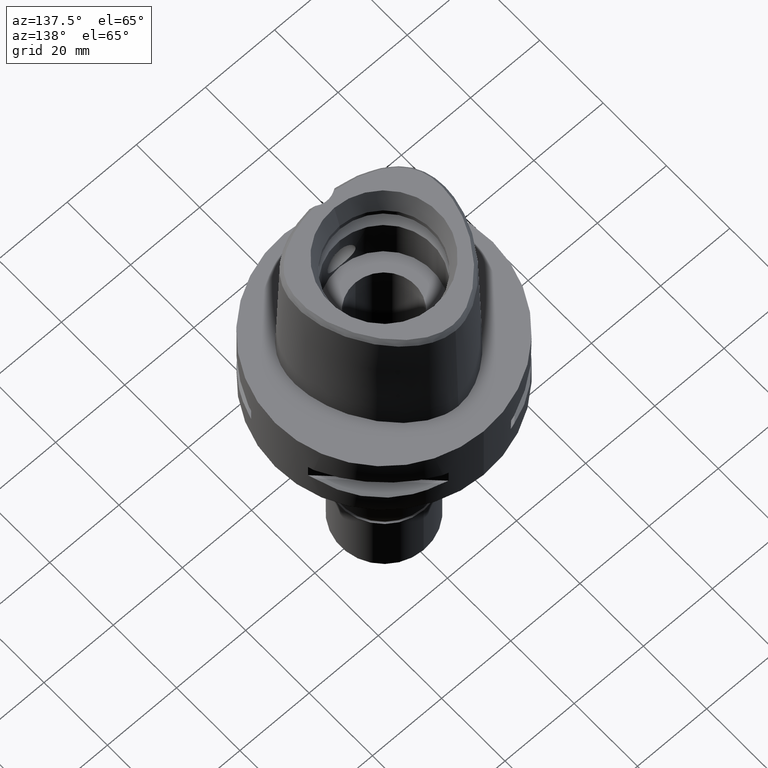
[diagram: clean part render]
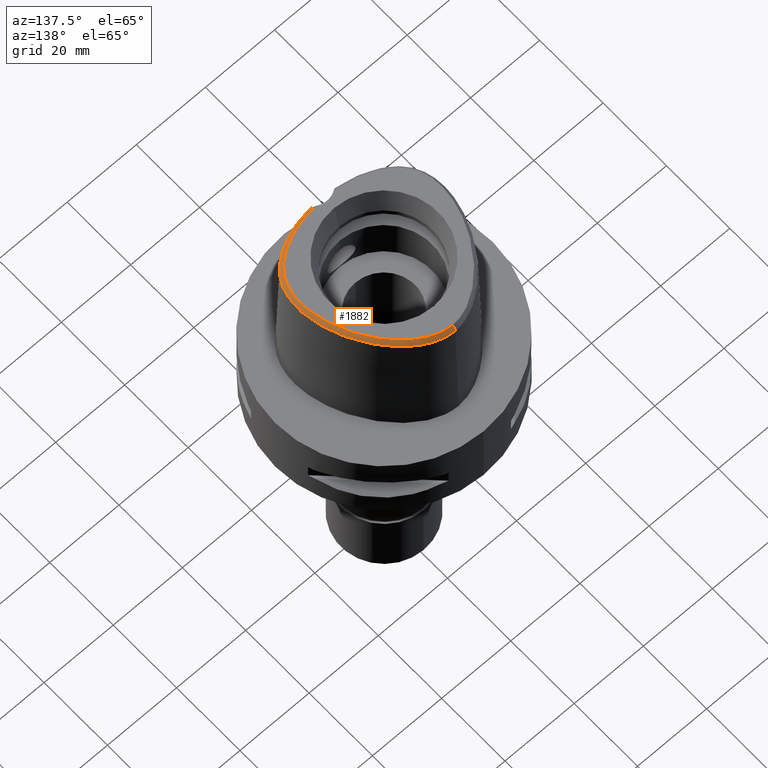
[diagram: same view with one face highlighted and labeled with its STEP entity id]
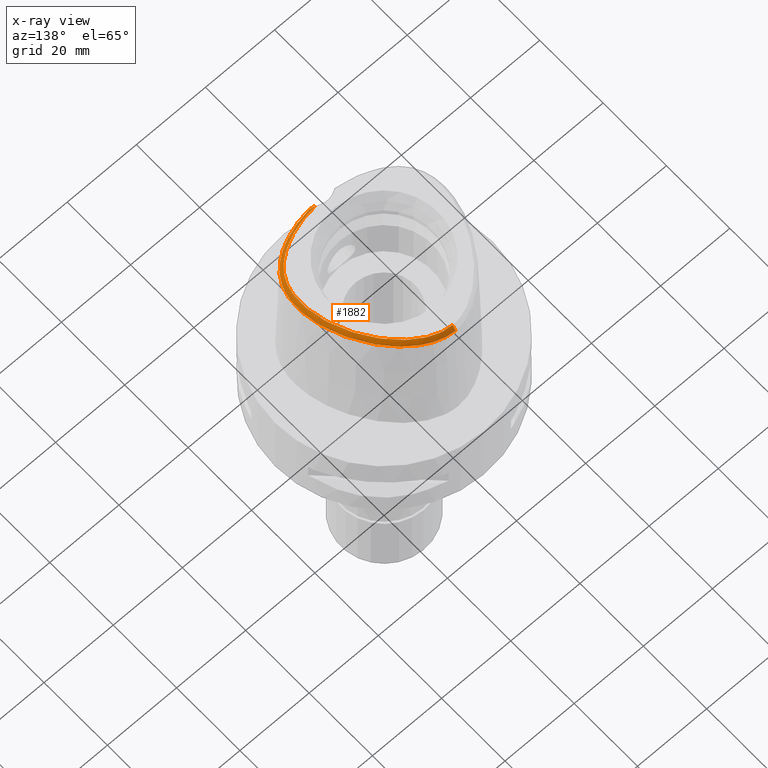
[diagram: x-ray of the same camera — body ghosted, the highlighted face saturated]
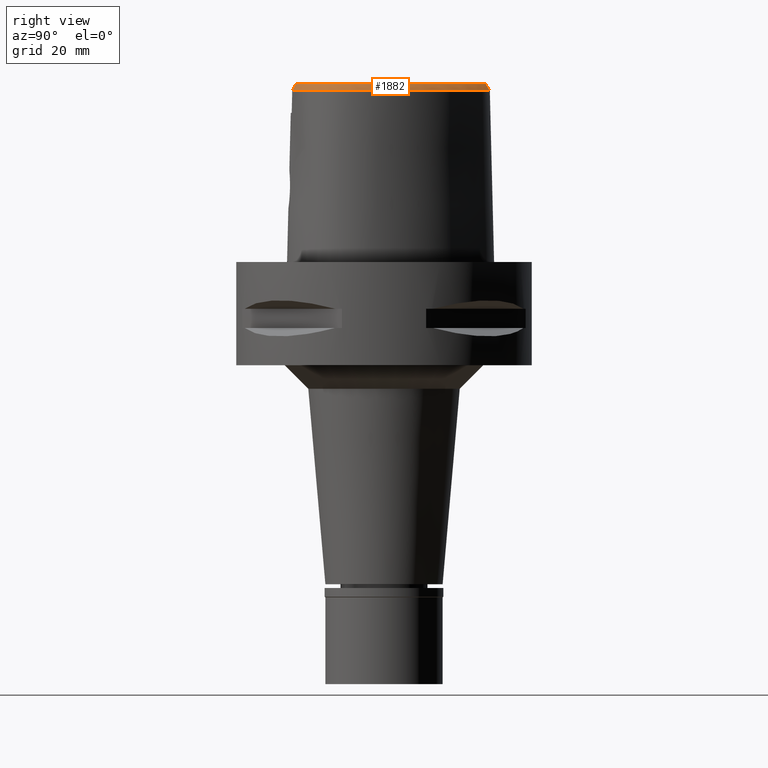
[diagram: same view with one face highlighted and labeled with its STEP entity id]
A machine part, auxiliary view. The second image highlights one B-rep face of the part: STEP entity #1882.
The next image is the same camera in x-ray: the body ghosted, the highlighted face saturated — about 0% of this face is hidden behind the body in this view.
A second angle (right view) of the same face is appended — the face is thin or edge-on in the first view.
In plain terms, the highlighted face is a freeform B-spline surface patch.
Its self-contained STEP definition (entity closure, byte-faithful):
#2 = CARTESIAN_POINT ( 'NONE',  ( 17.38390899051999838, -12.61969517244000016, 38.15670196575000261 ) ) ;
#16 = CARTESIAN_POINT ( 'NONE',  ( 10.17751632997903322, -17.24426134458531834, 37.99999999999511147 ) ) ;
#18 = CARTESIAN_POINT ( 'NONE',  ( 0.02305567606028999933, 21.95426788278000174, 37.55950914139999952 ) ) ;
#27 = CARTESIAN_POINT ( 'NONE',  ( 12.33645982144999920, -16.25488788931999906, 38.15670198871999474 ) ) ;
#53 = CARTESIAN_POINT ( 'NONE',  ( 21.33009041497999903, -5.338884983745999513, 36.36512421213999602 ) ) ;
#67 = CARTESIAN_POINT ( 'NONE',  ( 15.00628712262919962, -14.82385870794892746, 37.99999999999662492 ) ) ;
#73 = CARTESIAN_POINT ( 'NONE',  ( 20.64345491962000168, -3.264527573455999754, 37.55950904377999677 ) ) ;
#93 = EDGE_LOOP ( 'NONE', ( #3531, #1366, #1080, #2725 ) ) ;
#98 = CARTESIAN_POINT ( 'NONE',  ( 19.04098043123000039, 4.346992663770000043, 37.55950888710999891 ) ) ;
#128 = CARTESIAN_POINT ( 'NONE',  ( 19.69451325703000322, -8.513976679056998620, 38.15670197378000239 ) ) ;
#149 = CARTESIAN_POINT ( 'NONE',  ( 21.24015509872999985, -6.296820958630000575, 36.36512367808000334 ) ) ;
#171 = CARTESIAN_POINT ( 'NONE',  ( 9.465714586083999293, 17.63367428947000093, 38.15670182415999534 ) ) ;
#199 = CARTESIAN_POINT ( 'NONE',  ( 13.60676863036999862, 13.92709233595999940, 37.55950891512999590 ) ) ;
#204 = CARTESIAN_POINT ( 'NONE',  ( 2.635812662800999906, -18.69255267960000211, 38.15670187535999958 ) ) ;
#221 = CARTESIAN_POINT ( 'NONE',  ( 16.01805793838000014, 9.861766089282001602, 38.15670196944000025 ) ) ;
#226 = CARTESIAN_POINT ( 'NONE',  ( 2.088106135527000085, -19.08376056838000068, 37.55950929462999710 ) ) ;
#248 = CARTESIAN_POINT ( 'NONE',  ( 13.88125873612000127, 14.14990847568000021, 36.96231580991999977 ) ) ;
#268 = CARTESIAN_POINT ( 'NONE',  ( 3.333890464901999806, -19.26583408351000060, 37.08571122120000041 ) ) ;
#273 = CARTESIAN_POINT ( 'NONE',  ( 1.325020189552638117, 21.61081414409217416, 37.99999999999808153 ) ) ;
#275 = CARTESIAN_POINT ( 'NONE',  ( 11.65139655118000128, 16.11044074788999936, 37.55951008027999194 ) ) ;
#299 = CARTESIAN_POINT ( 'NONE',  ( 14.34383722811412731, 12.54786717290003750, 37.99999999999531752 ) ) ;
#307 = CARTESIAN_POINT ( 'NONE',  ( 15.55834419469000096, -15.61899914954999957, 36.36512418306000427 ) ) ;
#332 = CARTESIAN_POINT ( 'NONE',  ( 13.63153431639000068, -16.38934214878999995, 36.96231609295000453 ) ) ;
#354 = CARTESIAN_POINT ( 'NONE',  ( 2.714305041204000180, 21.25529253722000078, 38.15670191513999754 ) ) ;
#355 = CARTESIAN_POINT ( 'NONE',  ( 4.757642236485310150, 21.67478320247774803, 36.52186680739946922 ) ) ;
#362 = CARTESIAN_POINT ( 'NONE',  ( 17.64745483697999973, -12.85547402211000012, 37.55950906858999616 ) ) ;
#380 = CARTESIAN_POINT ( 'NONE',  ( 2.886773478462999698, 21.94117436864999959, 36.96231650658000234 ) ) ;
#381 = CARTESIAN_POINT ( 'NONE',  ( 20.67704204634085841, -8.734985285293733526, 36.52186680739946922 ) ) ;
#385 = CARTESIAN_POINT ( 'NONE',  ( 10.26427095885999918, -17.49019334636999901, 37.55950974779999996 ) ) ;
#413 = CARTESIAN_POINT ( 'NONE',  ( 11.55727096816999833, -17.37379782348999768, 36.96231596799000130 ) ) ;
#430 = CARTESIAN_POINT ( 'NONE',  ( 21.07429999882387861, -0.4408303635840938317, 36.52186680739946922 ) ) ;
#437 = CARTESIAN_POINT ( 'NONE',  ( 18.15692822776999904, 5.636658638119000031, 38.15670193935999777 ) ) ;
#463 = CARTESIAN_POINT ( 'NONE',  ( 20.27153396659999984, -5.270394882004000081, 38.15670187585999429 ) ) ;
#488 = CARTESIAN_POINT ( 'NONE',  ( 20.53814159833000019, -6.211366274538000276, 37.55950917738999806 ) ) ;
#517 = CARTESIAN_POINT ( 'NONE',  ( 20.19701593132999662, 0.2783090114198999987, 37.55950999927000566 ) ) ;
#541 = CARTESIAN_POINT ( 'NONE',  ( 19.17412100016999688, 2.842753440975999801, 38.15670177239999816 ) ) ;
#566 = CARTESIAN_POINT ( 'NONE',  ( 14.83874496110000152, 12.91179495935999988, 36.96231659177000495 ) ) ;
#587 = CARTESIAN_POINT ( 'NONE',  ( 16.92809707543999664, 10.40649099622000051, 36.36512323574000050 ) ) ;
#613 = CARTESIAN_POINT ( 'NONE',  ( 13.33227852461999952, 13.70427619624999949, 38.15670202035000358 ) ) ;
#637 = CARTESIAN_POINT ( 'NONE',  ( 4.255661039972192583, 20.86618068829973183, 37.99999999999936762 ) ) ;
#639 = CARTESIAN_POINT ( 'NONE',  ( 11.90292103908999977, 16.35890080265999913, 36.96231855471000216 ) ) ;
#668 = CARTESIAN_POINT ( 'NONE',  ( 6.339403082289999602, 20.99153821852999968, 36.36512385289999827 ) ) ;
#673 = CARTESIAN_POINT ( 'NONE',  ( 3.631248989101000024, -19.66974101461999780, 36.36512410300000653 ) ) ;
#688 = CARTESIAN_POINT ( 'NONE',  ( 15.24661770199512212, 11.25762885477820596, 37.99999999999793943 ) ) ;
#722 = CARTESIAN_POINT ( 'NONE',  ( 3.560698377627999900, 21.38345408902999978, 37.55950917566999436 ) ) ;
#729 = CARTESIAN_POINT ( 'NONE',  ( 18.24263462462999996, -11.53301259987000194, 38.15670199926999828 ) ) ;
#748 = CARTESIAN_POINT ( 'NONE',  ( 16.93855157777850096, -13.22377441789195451, 37.99999999999329248 ) ) ;
#751 = CARTESIAN_POINT ( 'NONE',  ( 0.7901461619525322888, 22.56201467849670905, 36.52186680739946922 ) ) ;
#755 = CARTESIAN_POINT ( 'NONE',  ( 7.752408357395999872, -18.60510518558000115, 36.96231802815000123 ) ) ;
#775 = CARTESIAN_POINT ( 'NONE',  ( 2.001159871969000026, 21.41137572813000034, 38.15670197260000407 ) ) ;
#785 = CARTESIAN_POINT ( 'NONE',  ( 16.87323685932999950, -13.15786894629999892, 38.15670197992999846 ) ) ;
#807 = CARTESIAN_POINT ( 'NONE',  ( 19.55745538001054840, -11.29150212657766872, 36.52186680739946922 ) ) ;
#812 = CARTESIAN_POINT ( 'NONE',  ( 12.79108708956999862, -17.21323262353000061, 36.36512303457999451 ) ) ;
#834 = CARTESIAN_POINT ( 'NONE',  ( 16.09933153242999992, -14.78011070482999934, 36.96231622263999839 ) ) ;
#847 = CARTESIAN_POINT ( 'NONE',  ( 19.28677546796970432, -9.867757137505881460, 37.99999999999641886 ) ) ;
#848 = CARTESIAN_POINT ( 'NONE',  ( 3.637738219117000238, -19.56971420299000286, 36.52185956443999970 ) ) ;
#854 = CARTESIAN_POINT ( 'NONE',  ( 20.76725203645999684, -0.9157177669677999399, 36.96231646281999872 ) ) ;
#884 = CARTESIAN_POINT ( 'NONE',  ( 19.20202660368000380, -9.829969433379998733, 38.15670195303999890 ) ) ;
#909 = CARTESIAN_POINT ( 'NONE',  ( 20.03262180542000337, -8.617558247491999168, 37.55950904601999696 ) ) ;
#931 = CARTESIAN_POINT ( 'NONE',  ( 20.37073035381000352, -8.721139815926999717, 36.96231611825000130 ) ) ;
#958 = CARTESIAN_POINT ( 'NONE',  ( 10.42732207452000104, 16.79757405191000075, 38.15670158691000324 ) ) ;
#979 = CARTESIAN_POINT ( 'NONE',  ( 10.66617082643999836, 17.05824966135000054, 37.55951013351999990 ) ) ;
#1000 = CARTESIAN_POINT ( 'NONE',  ( 6.713169134775999858, 19.57411979428000137, 38.15670197086999593 ) ) ;
#1005 = CARTESIAN_POINT ( 'NONE',  ( 2.109843764570999980, -19.43649698369999612, 36.96231670393000002 ) ) ;
#1029 = CARTESIAN_POINT ( 'NONE',  ( 0.6513209347955439821, 21.67370899611806223, 37.99999999999872813 ) ) ;
#1032 = CARTESIAN_POINT ( 'NONE',  ( 17.83913342770999932, 7.212087676789999513, 37.55950933108000100 ) ) ;
#1053 = CARTESIAN_POINT ( 'NONE',  ( 10.48999540690740062, 16.86597469869730404, 38.00000000000024158 ) ) ;
#1056 = CARTESIAN_POINT ( 'NONE',  ( 7.995984671477999406, 19.60572759504999851, 36.96231616094000572 ) ) ;
#1080 = ORIENTED_EDGE ( 'NONE', *, *, #3968, .T. ) ;
#1104 = CARTESIAN_POINT ( 'NONE',  ( 19.94150023627949153, 0.2261566111944022239, 38.00000000000127187 ) ) ;
#1114 = CARTESIAN_POINT ( 'NONE',  ( 17.61998216818999907, -13.91136835512999959, 36.36512312626000210 ) ) ;
#1135 = CARTESIAN_POINT ( 'NONE',  ( 2.066558751160000096, 21.75889935731999714, 37.55950904932999634 ) ) ;
#1140 = CARTESIAN_POINT ( 'NONE',  ( 18.90030776596999829, -11.16891143089999971, 37.55950910701999845 ) ) ;
#1159 = CARTESIAN_POINT ( 'NONE',  ( 0.6899054785524000311, 22.28697467953999833, 36.96231598084000325 ) ) ;
#1160 = CARTESIAN_POINT ( 'NONE',  ( 21.32871516739575668, -4.105831245034223365, 36.52186680739946922 ) ) ;
#1165 = CARTESIAN_POINT ( 'NONE',  ( 9.011177186904998138, -17.89795240000000121, 37.55951018024000376 ) ) ;
#1184 = CARTESIAN_POINT ( 'NONE',  ( 13.33890749495954786, -15.84912955619574504, 37.99999999999644018 ) ) ;
#1186 = CARTESIAN_POINT ( 'NONE',  ( 0.6454942333645998787, 21.58109895876999929, 38.15670199453000322 ) ) ;
#1187 = CARTESIAN_POINT ( 'NONE',  ( 2.376843874103906629, 22.39422497745083618, 36.52186680739946922 ) ) ;
#1194 = CARTESIAN_POINT ( 'NONE',  ( 17.37106706522999744, -13.66020188551999937, 36.96231607748000414 ) ) ;
#1209 = CARTESIAN_POINT ( 'NONE',  ( 18.31883910943519922, -11.58595831188037018, 38.00000000000006395 ) ) ;
#1210 = CARTESIAN_POINT ( 'NONE',  ( 2.682287482605000051, -18.78036330228999873, 38.00000000000000000 ) ) ;
#1211 = CARTESIAN_POINT ( 'NONE',  ( 10.15538781006661573, 18.47129526703056257, 36.52186680739946922 ) ) ;
#1216 = CARTESIAN_POINT ( 'NONE',  ( 15.35668705622000019, -15.32854775556999805, 36.96231674824999658 ) ) ;
#1232 = CARTESIAN_POINT ( 'NONE',  ( 10.91891095220842622, -18.03046396093175119, 36.52186680739946922 ) ) ;
#1237 = CARTESIAN_POINT ( 'NONE',  ( 20.88914834853000002, -6.254093616583999982, 36.96231642773999937 ) ) ;
#1238 = CARTESIAN_POINT ( 'NONE',  ( -1.574807162437000310E-11, 22.56201468012000078, 36.52186680743999858 ) ) ;
#1255 = CARTESIAN_POINT ( 'NONE',  ( 18.99619228226704237, -10.46780014453577046, 37.99999999999779732 ) ) ;
#1263 = CARTESIAN_POINT ( 'NONE',  ( 21.26805192436999903, -2.080459893733000332, 36.36512277466999876 ) ) ;
#1290 = CARTESIAN_POINT ( 'NONE',  ( 19.85060208415000105, 0.2076037124823999769, 38.15670163467000719 ) ) ;
#1315 = CARTESIAN_POINT ( 'NONE',  ( 20.70883890220000012, -8.824721384361000176, 36.36512319048999586 ) ) ;
#1316 = LINE ( 'NONE', #1238, #2157 ) ;
#1339 = CARTESIAN_POINT ( 'NONE',  ( 20.99667120980999968, -3.248596328726999882, 36.96231611299999997 ) ) ;
#1363 = CARTESIAN_POINT ( 'NONE',  ( 8.191669182790999315, 19.90021256789000148, 36.36512325774000232 ) ) ;
#1366 = ORIENTED_EDGE ( 'NONE', *, *, #2698, .T. ) ;
#1373 = B_SPLINE_CURVE_WITH_KNOTS ( 'NONE', 3,
 ( #1518, #751, #1187, #355, #1930, #1211, #5058, #2772, #2388, #430, #1160, #2336, #381, #2747, #807, #2361, #2000, #2409, #4740, #1232, #2795, #4350, #848 ),
 .UNSPECIFIED., .F., .F.,
 ( 4, 1, 1, 1, 1, 1, 1, 1, 1, 1, 1, 1, 1, 1, 1, 1, 1, 1, 1, 1, 4 ),
 ( 0.0000000000000000000, 0.04382683003322268567, 0.08765366006602449966, 0.1314804900989316461, 0.1753073201318388064, 0.2629609801974425731, 0.3506146402631516446, 0.4382683003288606050, 0.5259219603945697319, 0.5697487904274767256, 0.6135756204602786923, 0.6574024504930806589, 0.6793158655094815312, 0.7012292805259877637, 0.7231426955423886360, 0.7450561105587896193, 0.7888829405916967241, 0.8327097706246039399, 0.8765366006573006574, 0.9641902607230726785, 1.000000000000000000 ),
 .UNSPECIFIED. ) ;
#1384 = CARTESIAN_POINT ( 'NONE',  ( 4.348547361562999924, 21.10989837994000240, 37.55950904570999427 ) ) ;
#1390 = CARTESIAN_POINT ( 'NONE',  ( 2.663590398016999927, -19.04488114573999979, 37.55950932269000475 ) ) ;
#1412 = CARTESIAN_POINT ( 'NONE',  ( 4.222617296851000290, 20.77947960402000049, 38.15670197388999441 ) ) ;
#1418 = CARTESIAN_POINT ( 'NONE',  ( 2.719145868449000414, -19.74953807802999961, 36.36512421736000533 ) ) ;
#1440 = CARTESIAN_POINT ( 'NONE',  ( 13.16230682391999984, 15.53682320185999899, 36.36512408982000011 ) ) ;
#1462 = CARTESIAN_POINT ( 'NONE',  ( 16.09765529146645235, 9.909410920132161849, 37.99999999999656808 ) ) ;
#1465 = CARTESIAN_POINT ( 'NONE',  ( 7.604615648854000654, 19.01675764936999968, 38.15670196733999830 ) ) ;
#1467 = VERTEX_POINT ( 'NONE', #2505 ) ;
#1472 = CARTESIAN_POINT ( 'NONE',  ( 2.293782051997999893, -19.07108370513000040, 37.55950930884999650 ) ) ;
#1489 = CARTESIAN_POINT ( 'NONE',  ( 16.88599964843261958, 8.518708218769978302, 38.00000000000117240 ) ) ;
#1497 = CARTESIAN_POINT ( 'NONE',  ( 17.00247351282000352, -14.48897482859000085, 36.36512302370000072 ) ) ;
#1517 = CARTESIAN_POINT ( 'NONE',  ( 1.313473731863000094, 21.51874400440000201, 38.15670202757000595 ) ) ;
#1518 = CARTESIAN_POINT ( 'NONE',  ( -1.574807162437000310E-11, 22.56201468012000078, 36.52186680743999858 ) ) ;
#1524 = CARTESIAN_POINT ( 'NONE',  ( 9.111851544171001294, -18.23686828894000200, 36.96231879019000388 ) ) ;
#1537 = CARTESIAN_POINT ( 'NONE',  ( 3.637738219117000238, -19.56971420299000286, 36.52185956443999970 ) ) ;
#1540 = CARTESIAN_POINT ( 'NONE',  ( 16.36283630828129176, -13.76236604535027297, 38.00000000000147082 ) ) ;
#1548 = CARTESIAN_POINT ( 'NONE',  ( 19.54079803119000047, -10.75239476371000080, 36.96231594913000151 ) ) ;
#1573 = EDGE_CURVE ( 'NONE', #1467, #4914, #1373, .T. ) ;
#1576 = CARTESIAN_POINT ( 'NONE',  ( 19.50518283493000027, -11.53547746521999962, 36.36512341689999772 ) ) ;
#1590 = CARTESIAN_POINT ( 'NONE',  ( 4.715576077241634856, -18.56597918134936975, 37.99999999999166533 ) ) ;
#1600 = CARTESIAN_POINT ( 'NONE',  ( 14.16523859001000041, -15.26380013505999855, 38.15670192358000179 ) ) ;
#1624 = CARTESIAN_POINT ( 'NONE',  ( 21.34988750000999858, -3.232665083999000100, 36.36512318221000584 ) ) ;
#1649 = CARTESIAN_POINT ( 'NONE',  ( 19.84798429224999694, -10.11798813686000109, 36.96231625556999489 ) ) ;
#1672 = CARTESIAN_POINT ( 'NONE',  ( 20.23818576269999880, -7.869252963275998880, 37.55950901815999998 ) ) ;
#1702 = CARTESIAN_POINT ( 'NONE',  ( 20.75589990361000048, -7.131463137614999503, 36.96231601806000100 ) ) ;
#1728 = CARTESIAN_POINT ( 'NONE',  ( 21.10386693226000077, -7.194357091066999388, 36.36512303263000234 ) ) ;
#1750 = CARTESIAN_POINT ( 'NONE',  ( 15.16935867921000103, 11.20627882804999942, 38.15670187512999689 ) ) ;
#1775 = CARTESIAN_POINT ( 'NONE',  ( 5.165941424466000242, 20.77198439180000378, 37.55950918727999976 ) ) ;
#1781 = FACE_OUTER_BOUND ( 'NONE', #93, .T. ) ;
#1801 = CARTESIAN_POINT ( 'NONE',  ( 14.55392276887999969, 12.70235246524999972, 37.55950924702000293 ) ) ;
#1823 = CARTESIAN_POINT ( 'NONE',  ( 8.945379441982000301, 18.93914077410000374, 36.96231579991999894 ) ) ;
#1853 = CARTESIAN_POINT ( 'NONE',  ( 11.14386833028000012, 17.57960088020999834, 36.36512722671999853 ) ) ;
#1873 = CARTESIAN_POINT ( 'NONE',  ( 18.79595068775723021, 4.257753965101748861, 37.99999999999841549 ) ) ;
#1880 = CARTESIAN_POINT ( 'NONE',  ( 13.46312592987999857, -16.07844675428999892, 37.55950903526999696 ) ) ;
#1882 = ADVANCED_FACE ( 'NONE', ( #1781 ), #3922, .F. ) ;
#1892 = CARTESIAN_POINT ( 'NONE',  ( 2.793638415234999783, -18.85114551274000050, 37.86575802397000245 ) ) ;
#1897 = CARTESIAN_POINT ( 'NONE',  ( 3.482188079159831418, 21.13472718027580299, 38.00000000000076028 ) ) ;
#1899 = CARTESIAN_POINT ( 'NONE',  ( 0.02238958393891999840, 21.60065043810000063, 38.15670193984999514 ) ) ;
#1904 = CARTESIAN_POINT ( 'NONE',  ( 18.53305074569999888, -11.73478928464999882, 37.55950897436999725 ) ) ;
#1929 = CARTESIAN_POINT ( 'NONE',  ( 1.401481083737000199, 22.22050461346999839, 36.96231576206000113 ) ) ;
#1930 = CARTESIAN_POINT ( 'NONE',  ( 7.108589361577414500, 20.52412316394912040, 36.52186680739946922 ) ) ;
#1937 = CARTESIAN_POINT ( 'NONE',  ( 19.20274530045000105, -11.35219444806000055, 36.96231626195999809 ) ) ;
#1954 = CARTESIAN_POINT ( 'NONE',  ( 20.15127154947484200, -7.022178451341561711, 37.99999999999928235 ) ) ;
#1955 = CARTESIAN_POINT ( 'NONE',  ( -0.6188854686317999398, 21.93103666692999809, 37.55950891574999417 ) ) ;
#1961 = CARTESIAN_POINT ( 'NONE',  ( 17.91100068343999752, -13.09125287179000097, 36.96231617142000658 ) ) ;
#1976 = CARTESIAN_POINT ( 'NONE',  ( 0.6676998559584998993, 21.93403681915000192, 37.55950898768999480 ) ) ;
#1981 = CARTESIAN_POINT ( 'NONE',  ( 13.29471754337000178, -15.76755135977999878, 38.15670197760000093 ) ) ;
#2000 = CARTESIAN_POINT ( 'NONE',  ( 17.90324024157812488, -13.53935104436302872, 36.52186680739946922 ) ) ;
#2010 = CARTESIAN_POINT ( 'NONE',  ( 18.48293798285000022, 5.773436085368000903, 37.55950914278000141 ) ) ;
#2028 = CARTESIAN_POINT ( 'NONE',  ( 20.27923816685646585, -6.179850483268602090, 38.00000000000258638 ) ) ;
#2034 = CARTESIAN_POINT ( 'NONE',  ( 18.70878284902999766, 4.226007841616999272, 38.15670203031000085 ) ) ;
#2044 = VERTEX_POINT ( 'NONE', #1210 ) ;
#2057 = CARTESIAN_POINT ( 'NONE',  ( 20.58132725577999977, 1.762844092179000066, 36.36512747977000259 ) ) ;
#2084 = CARTESIAN_POINT ( 'NONE',  ( 19.55402377310000261, 1.498968291381999940, 38.15670156265000657 ) ) ;
#2108 = CARTESIAN_POINT ( 'NONE',  ( 20.17096313652999839, -10.26199748858999961, 36.36512340683000133 ) ) ;
#2109 = DIRECTION ( 'NONE',  ( -1.103805576440015009E-11, -0.5092834681090075977, 0.8605988316927122295 ) ) ;
#2133 = CARTESIAN_POINT ( 'NONE',  ( 12.89891967760999947, 15.30098120868999878, 36.96231668907000767 ) ) ;
#2149 = B_SPLINE_CURVE_WITH_KNOTS ( 'NONE', 3,
 ( #1537, #3776, #268, #4652, #1892, #3096 ),
 .UNSPECIFIED., .F., .F.,
 ( 4, 1, 1, 4 ),
 ( 0.0000000000000000000, 0.3333333333333000081, 0.6666666666667000474, 1.000000000000000000 ),
 .UNSPECIFIED. ) ;
#2154 = CARTESIAN_POINT ( 'NONE',  ( 16.62475069641999781, 10.22491602724000082, 36.96231614697000367 ) ) ;
#2157 = VECTOR ( 'NONE', #2109, 1000.000000000000227 ) ;
#2164 = CARTESIAN_POINT ( 'NONE',  ( 2.066368506483999834, -18.73102415305000079, 38.15670188533999863 ) ) ;
#2185 = CARTESIAN_POINT ( 'NONE',  ( 4.474477426274999559, 21.44031715586999809, 36.96231611753999857 ) ) ;
#2207 = CARTESIAN_POINT ( 'NONE',  ( 5.059249257020493218, 20.53399274678943343, 38.00000000000110134 ) ) ;
#2209 = CARTESIAN_POINT ( 'NONE',  ( 9.916391420735999773, 18.17856830008999935, 36.96231710906000245 ) ) ;
#2234 = CARTESIAN_POINT ( 'NONE',  ( 16.05266360957000060, 11.79336536045000017, 36.36512421970999753 ) ) ;
#2240 = CARTESIAN_POINT ( 'NONE',  ( 4.852798244487000368, -19.52405634879999852, 36.36512323903000521 ) ) ;
#2257 = CARTESIAN_POINT ( 'NONE',  ( 17.60373714027872438, 7.099883643192439031, 37.99999999999814548 ) ) ;
#2280 = CARTESIAN_POINT ( 'NONE',  ( 13.40430406168658628, 13.76274261013375977, 38.00000000000449774 ) ) ;
#2283 = CARTESIAN_POINT ( 'NONE',  ( -0.4344000384519999813, 22.64867421310000140, 36.36512320551000244 ) ) ;
#2289 = CARTESIAN_POINT ( 'NONE',  ( 8.910502829638998534, -17.55903651104999952, 38.15670157029000364 ) ) ;
#2314 = CARTESIAN_POINT ( 'NONE',  ( 15.15502991774999941, -15.03809636159000007, 37.55950931345000043 ) ) ;
#2335 = CARTESIAN_POINT ( 'NONE',  ( -0.3943556444997000088, 21.58903327230999736, 38.15670197234000227 ) ) ;
#2336 = CARTESIAN_POINT ( 'NONE',  ( 21.14970177531150242, -6.717195943319219431, 36.52186680739946922 ) ) ;
#2343 = CARTESIAN_POINT ( 'NONE',  ( 18.39370311964999871, -12.51679603857999901, 36.96231652112000177 ) ) ;
#2361 = CARTESIAN_POINT ( 'NONE',  ( 18.90964962507793956, -12.28759713487231053, 36.52186680739946922 ) ) ;
#2368 = CARTESIAN_POINT ( 'NONE',  ( 10.14665389918999949, -17.15677253295999805, 38.15670172411999772 ) ) ;
#2388 = CARTESIAN_POINT ( 'NONE',  ( 19.88562079789230808, 4.345879946636868496, 36.52186680739946922 ) ) ;
#2393 = CARTESIAN_POINT ( 'NONE',  ( 19.89645826733000078, 1.586926891647999938, 37.55951020169000287 ) ) ;
#2408 = CARTESIAN_POINT ( 'NONE',  ( 2.845098933833160260, -18.76733062685737607, 38.00000000000216005 ) ) ;
#2409 = CARTESIAN_POINT ( 'NONE',  ( 16.39211273426542803, -14.95758104715744174, 36.52186680739946922 ) ) ;
#2418 = CARTESIAN_POINT ( 'NONE',  ( 18.80894773793000141, 5.910213532616999998, 36.96231634619000062 ) ) ;
#2441 = CARTESIAN_POINT ( 'NONE',  ( 21.36854953239999944, -4.318258507077999298, 36.36512338268000377 ) ) ;
#2468 = CARTESIAN_POINT ( 'NONE',  ( 20.12544542507999878, -9.441493100620000689, 36.96231642517000182 ) ) ;
#2490 = CARTESIAN_POINT ( 'NONE',  ( 20.06810186830999854, -1.021615016601999937, 38.15670192174999897 ) ) ;
#2505 = CARTESIAN_POINT ( 'NONE',  ( -1.574807162437000310E-11, 22.56201468012000078, 36.52186680743999858 ) ) ;
#2515 = CARTESIAN_POINT ( 'NONE',  ( 16.32140431739999897, 10.04334105825999934, 37.55950905820999708 ) ) ;
#2540 = CARTESIAN_POINT ( 'NONE',  ( 17.51999634486000090, 7.059967741691999699, 38.15670187237000022 ) ) ;
#2561 = CARTESIAN_POINT ( 'NONE',  ( 18.15827051055000396, 7.364207611887000127, 36.96231678979000179 ) ) ;
#2569 = CARTESIAN_POINT ( 'NONE',  ( 4.702423413793999529, -18.47414805236000035, 38.15670196912000023 ) ) ;
#2591 = CARTESIAN_POINT ( 'NONE',  ( 17.73901299073999738, 8.975972811614999713, 36.36512360272999445 ) ) ;
#2616 = CARTESIAN_POINT ( 'NONE',  ( 12.44125753246642496, 14.89118158853444029, 37.99999999999936762 ) ) ;
#2618 = CARTESIAN_POINT ( 'NONE',  ( 6.892714468827000118, 19.87872206041999945, 37.55950905419999941 ) ) ;
#2625 = CARTESIAN_POINT ( 'NONE',  ( 4.802673300923000710, -19.17408691664999765, 36.96231614906000118 ) ) ;
#2639 = CARTESIAN_POINT ( 'NONE',  ( 9.524842839487865476, 17.70516372194342125, 38.00000000000107292 ) ) ;
#2641 = CARTESIAN_POINT ( 'NONE',  ( 2.973007697092999724, 22.28411528436999944, 36.36512380230000474 ) ) ;
#2667 = CARTESIAN_POINT ( 'NONE',  ( 20.30478359881838912, -2.175347700950606811, 37.99999999999358380 ) ) ;
#2670 = CARTESIAN_POINT ( 'NONE',  ( 3.454258518697999936, 21.04624409751999892, 38.15670192766000213 ) ) ;
#2675 = CARTESIAN_POINT ( 'NONE',  ( 18.11628037135000113, -12.29750413480999960, 37.55950921703000489 ) ) ;
#2698 = EDGE_CURVE ( 'NONE', #1467, #3578, #1316, .T. ) ;
#2705 = CARTESIAN_POINT ( 'NONE',  ( 18.17454652988999797, -13.32703172146000092, 36.36512327425000279 ) ) ;
#2722 = CARTESIAN_POINT ( 'NONE',  ( 2.131957630351000166, 22.10642298650999749, 36.96231612605000549 ) ) ;
#2725 = ORIENTED_EDGE ( 'NONE', *, *, #2907, .F. ) ;
#2727 = CARTESIAN_POINT ( 'NONE',  ( 10.38188801853999976, -17.82361415976999908, 36.96231777148999953 ) ) ;
#2745 = CARTESIAN_POINT ( 'NONE',  ( 12.37622418510011002, -16.33871033286072816, 37.99999999999580780 ) ) ;
#2746 = CARTESIAN_POINT ( 'NONE',  ( 0.02372176818166000026, 22.30788532745999930, 36.96231634293999946 ) ) ;
#2747 = CARTESIAN_POINT ( 'NONE',  ( 20.09619608769056853, -10.23243839430034186, 36.52186680739946922 ) ) ;
#2753 = CARTESIAN_POINT ( 'NONE',  ( 12.48800224414999960, -16.57433613405000017, 37.55950900400999615 ) ) ;
#2772 = CARTESIAN_POINT ( 'NONE',  ( 17.27359236349035143, 9.972912859140009800, 36.52186680739946922 ) ) ;
#2779 = CARTESIAN_POINT ( 'NONE',  ( 15.66362259262999856, -14.22307361312999952, 38.15670195802000109 ) ) ;
#2794 = CARTESIAN_POINT ( 'NONE',  ( 17.45306278053032756, -12.68156296993340071, 37.99999999999850786 ) ) ;
#2795 = CARTESIAN_POINT ( 'NONE',  ( 7.300578979383382183, -19.07170738130537657, 36.52186680739946922 ) ) ;
#2799 = CARTESIAN_POINT ( 'NONE',  ( 21.11682712053000088, -0.8627691421508000280, 36.36512373336000081 ) ) ;
#2818 = CARTESIAN_POINT ( 'NONE',  ( 7.606839420237132110, -18.00827588386008316, 37.99999999999604938 ) ) ;
#2827 = CARTESIAN_POINT ( 'NONE',  ( 20.66141387655999750, -4.311739263730999916, 37.55950909779999591 ) ) ;
#2851 = CARTESIAN_POINT ( 'NONE',  ( 19.85422171195000018, -10.91618057252000007, 36.36512292403999425 ) ) ;
#2872 = CARTESIAN_POINT ( 'NONE',  ( 3.637738219117000238, -19.56971420299000286, 36.52185956443999970 ) ) ;
#2873 = CARTESIAN_POINT ( 'NONE',  ( 20.62438611605999839, -5.293224915917999596, 37.55950932129000108 ) ) ;
#2892 = CARTESIAN_POINT ( 'NONE',  ( 20.21245490039999737, -2.184442641066000057, 38.15670201363000302 ) ) ;
#2907 = EDGE_CURVE ( 'NONE', #4914, #2044, #2149, .T. ) ;
#2921 = CARTESIAN_POINT ( 'NONE',  ( 5.851842434521000058, 20.04946480695999966, 38.15670191027999891 ) ) ;
#2943 = CARTESIAN_POINT ( 'NONE',  ( 10.90501957836000102, 17.31892527078000299, 36.96231868012000632 ) ) ;
#2968 = CARTESIAN_POINT ( 'NONE',  ( 19.13495749300999904, 6.046990979866999183, 36.36512354960999716 ) ) ;
#2976 = CARTESIAN_POINT ( 'NONE',  ( 2.341565895693999533, -19.77629102216999968, 36.36512416599999398 ) ) ;
#2999 = CARTESIAN_POINT ( 'NONE',  ( 9.691053003409999533, 17.90612129478000014, 37.55950946661000245 ) ) ;
#3005 = CARTESIAN_POINT ( 'NONE',  ( 6.178933736172000479, -18.22564383497999785, 38.15670198706999372 ) ) ;
#3025 = CARTESIAN_POINT ( 'NONE',  ( 12.63553253130000087, 15.06513921551000124, 37.55950928833000546 ) ) ;
#3031 = CARTESIAN_POINT ( 'NONE',  ( 4.752548357358000075, -18.82411748450999767, 37.55950905908999715 ) ) ;
#3051 = CARTESIAN_POINT ( 'NONE',  ( 17.12215196227999670, -13.40903541591000092, 37.55950902870999641 ) ) ;
#3076 = CARTESIAN_POINT ( 'NONE',  ( 6.760281394350856843, 19.65404668909622288, 37.99999999999913314 ) ) ;
#3078 = CARTESIAN_POINT ( 'NONE',  ( 4.600407490987000081, 21.77073593179000355, 36.36512318935999843 ) ) ;
#3083 = CARTESIAN_POINT ( 'NONE',  ( 16.76882482891999970, -14.22355689369000054, 36.96231601238999787 ) ) ;
#3096 = CARTESIAN_POINT ( 'NONE',  ( 2.682287482605000051, -18.78036330228999873, 38.00000000000000000 ) ) ;
#3102 = CARTESIAN_POINT ( 'NONE',  ( 1.445484759673999919, 22.57138491801000058, 36.36512262930000361 ) ) ;
#3110 = CARTESIAN_POINT ( 'NONE',  ( 10.49950507820999945, -18.15703497318000004, 36.36512579516999466 ) ) ;
#3126 = CARTESIAN_POINT ( 'NONE',  ( 18.67722910598415709, -11.03372143228456181, 37.99999999999963762 ) ) ;
#3135 = CARTESIAN_POINT ( 'NONE',  ( 11.28809889212999984, -16.71990383017000070, 38.15670199646999805 ) ) ;
#3161 = CARTESIAN_POINT ( 'NONE',  ( -3.470663397170000352E-11, 21.68728795390000030, 38.00000000000000000 ) ) ;
#3162 = CARTESIAN_POINT ( 'NONE',  ( 14.72069565189999985, -16.16749835050999806, 36.36512371424999657 ) ) ;
#3182 = CARTESIAN_POINT ( 'NONE',  ( 20.54342977852000018, 0.3490143103573000172, 36.96231836385999969 ) ) ;
#3198 = CARTESIAN_POINT ( 'NONE',  ( 19.78323211892870503, -8.541156231035186508, 37.99999999999914735 ) ) ;
#3205 = CARTESIAN_POINT ( 'NONE',  ( 19.89450334034000178, -7.786041984330999810, 38.15670198368999877 ) ) ;
#3234 = CARTESIAN_POINT ( 'NONE',  ( 20.40793287494999930, -7.068569184164000596, 37.55950900348999966 ) ) ;
#3257 = CARTESIAN_POINT ( 'NONE',  ( 20.18717907204999662, 3.156869756707000096, 36.36512529152999917 ) ) ;
#3260 = B_SPLINE_CURVE_WITH_KNOTS ( 'NONE', 3,
 ( #3810, #3400, #1029, #273, #4197, #4145, #1897, #637, #2207, #4976, #3076, #3453, #3756, #2639, #1053, #3373, #2616, #2280, #299, #688, #1462, #1489, #2257, #4604, #1873, #3424, #5001, #1104, #3833, #2667, #4225, #5025, #4632, #2028, #1954, #3960, #3198, #4323, #847, #1255, #3126, #1209, #4301, #2794, #748, #1540, #4762, #67, #4348, #1184, #2745, #4738, #16, #3504, #2818, #3477, #1590, #5055, #2408, #3576 ),
 .UNSPECIFIED., .F., .F.,
 ( 4, 1, 1, 1, 1, 1, 1, 1, 1, 1, 1, 1, 1, 1, 1, 1, 1, 1, 1, 1, 1, 1, 1, 1, 1, 1, 1, 1, 1, 1, 1, 1, 1, 1, 1, 1, 1, 1, 1, 1, 1, 1, 1, 1, 1, 1, 1, 1, 1, 1, 1, 1, 1, 1, 1, 1, 1, 4 ),
 ( 0.0000000000000000000, 0.01775854187129999318, 0.03551708374169992855, 0.05327562561200005486, 0.07103416748239999023, 0.08879270935270000553, 0.1065512512231000519, 0.1243097930933999562, 0.1420683349638000026, 0.1598268768341000179, 0.1775854187044000332, 0.1953439605747999686, 0.2131025024450999839, 0.2308610443155000302, 0.2486195861857999345, 0.2663781280563000120, 0.2841366699266000273, 0.3018952117970000737, 0.3196537536672999780, 0.3374122955377000244, 0.3551708374080000397, 0.3729293792782999439, 0.3906879211486999903, 0.4084464630190000056, 0.4262050048894000520, 0.4439635467596999563, 0.4617220886301000027, 0.4794806305004000180, 0.4972391723707999533, 0.5149977142410999686, 0.5327562561113999839, 0.5505147979818000303, 0.5682733398521000456, 0.5860318817224999810, 0.6037904235927999963, 0.6215489654632000427, 0.6393075073334999470, 0.6570660492038999934, 0.6748245910742000087, 0.6925831329445000240, 0.7103416748149000703, 0.7281002166851999746, 0.7458587585556000210, 0.7636173004259000363, 0.7813758422962999717, 0.7991343841665999870, 0.8168929260370000334, 0.8346514679073000487, 0.8524100097776999840, 0.8701685516479999993, 0.8879270935183000146, 0.9056856353886799660, 0.9234441772589799813, 0.9412027191293600437, 0.9589612609997000270, 0.9767198028700500023, 0.9944783447403919840, 1.000000000000000000 ),
 .UNSPECIFIED. ) ;
#3280 = CARTESIAN_POINT ( 'NONE',  ( 20.97723826552000048, -5.316054949831999998, 36.96231676670999633 ) ) ;
#3301 = CARTESIAN_POINT ( 'NONE',  ( 11.39987206328000013, 15.86198069311999959, 38.15670160585000303 ) ) ;
#3323 = CARTESIAN_POINT ( 'NONE',  ( 5.310588680601999734, 21.09464011489000157, 36.96231645102999863 ) ) ;
#3348 = CARTESIAN_POINT ( 'NONE',  ( 18.47740759339000149, 7.516327546985000829, 36.36512424850000258 ) ) ;
#3373 = CARTESIAN_POINT ( 'NONE',  ( 11.46587147800191175, 15.92717600803128519, 38.00000000000061817 ) ) ;
#3375 = CARTESIAN_POINT ( 'NONE',  ( 17.42742160210999813, 8.808941767210997753, 36.96231637990999985 ) ) ;
#3400 = CARTESIAN_POINT ( 'NONE',  ( 0.2185816947241077390, 21.68728795390023478, 37.99999999999945288 ) ) ;
#3402 = CARTESIAN_POINT ( 'NONE',  ( 7.800300160165999586, 19.31124262220999910, 37.55950906413999490 ) ) ;
#3424 = CARTESIAN_POINT ( 'NONE',  ( 19.26272899268450089, 2.870227893749790038, 38.00000000000162714 ) ) ;
#3435 = CARTESIAN_POINT ( 'NONE',  ( 14.53554329793999855, -15.86626561203000030, 36.96231645069000393 ) ) ;
#3453 = CARTESIAN_POINT ( 'NONE',  ( 7.655962789343270458, 19.09402979099742481, 38.00000000000383693 ) ) ;
#3455 = CARTESIAN_POINT ( 'NONE',  ( 2.197356509542999881, 22.45394661569000050, 36.36512320277999777 ) ) ;
#3461 = CARTESIAN_POINT ( 'NONE',  ( 19.11388298782999939, -12.13834265419999880, 36.36512292456999518 ) ) ;
#3477 = CARTESIAN_POINT ( 'NONE',  ( 6.196495988003546174, -18.31673538865104334, 38.00000000000176215 ) ) ;
#3485 = CARTESIAN_POINT ( 'NONE',  ( 18.91395066968000194, -10.42482314610999872, 38.15670199931999917 ) ) ;
#3504 = CARTESIAN_POINT ( 'NONE',  ( 8.936919536467483383, -17.64796721715055483, 38.00000000000072475 ) ) ;
#3512 = CARTESIAN_POINT ( 'NONE',  ( 18.82346686675999692, -11.93656596941999837, 36.96231594946999621 ) ) ;
#3529 = CARTESIAN_POINT ( 'NONE',  ( 3.773578095486000095, 22.05787407205000150, 36.36512367168000281 ) ) ;
#3531 = ORIENTED_EDGE ( 'NONE', *, *, #1573, .F. ) ;
#3535 = CARTESIAN_POINT ( 'NONE',  ( 14.35039094396999992, -15.56503287353999987, 37.55950918713999442 ) ) ;
#3561 = CARTESIAN_POINT ( 'NONE',  ( 20.30784604865000276, -4.308479642056999737, 38.15670195535999909 ) ) ;
#3576 = CARTESIAN_POINT ( 'NONE',  ( 2.682287482605000051, -18.78036330228999873, 38.00000000000000000 ) ) ;
#3578 = VERTEX_POINT ( 'NONE', #3161 ) ;
#3583 = CARTESIAN_POINT ( 'NONE',  ( 20.92555060740999906, -8.035674921165000484, 36.36512308710999974 ) ) ;
#3611 = CARTESIAN_POINT ( 'NONE',  ( 19.84949304809000026, 3.052164318129999998, 36.96231745181999884 ) ) ;
#3638 = CARTESIAN_POINT ( 'NONE',  ( 19.51180702413000034, 2.947458879552999900, 37.55950961210999850 ) ) ;
#3661 = CARTESIAN_POINT ( 'NONE',  ( 19.46302213685000027, -9.193702631217000487, 38.15670192742999944 ) ) ;
#3686 = CARTESIAN_POINT ( 'NONE',  ( 12.15444552699000091, 16.60736085742999890, 36.36512702913999817 ) ) ;
#3706 = CARTESIAN_POINT ( 'NONE',  ( 6.176882866366999458, 20.67751374800999997, 36.96231653869000411 ) ) ;
#3715 = CARTESIAN_POINT ( 'NONE',  ( 2.131581393614999875, -19.78923339902000222, 36.36512411321999849 ) ) ;
#3731 = CARTESIAN_POINT ( 'NONE',  ( 14.26910057665000053, 12.49290997113999957, 38.15670190226999381 ) ) ;
#3756 = CARTESIAN_POINT ( 'NONE',  ( 8.578848111816812505, 18.44609846599110270, 37.99999999999790390 ) ) ;
#3758 = CARTESIAN_POINT ( 'NONE',  ( 8.734438593782002158, 18.65539214441999860, 37.55950891088999555 ) ) ;
#3776 = CARTESIAN_POINT ( 'NONE',  ( 3.538456335110000239, -19.46442807662000263, 36.71654987732999587 ) ) ;
#3782 = CARTESIAN_POINT ( 'NONE',  ( 6.014362650443999314, 20.36348927747999937, 37.55950922449000018 ) ) ;
#3789 = CARTESIAN_POINT ( 'NONE',  ( 6.245863669064999790, -18.57279473754000065, 37.55950900866999831 ) ) ;
#3810 = CARTESIAN_POINT ( 'NONE',  ( -3.470663397170000352E-11, 21.68728795390000030, 38.00000000000000000 ) ) ;
#3812 = CARTESIAN_POINT ( 'NONE',  ( 2.800539259834000205, 21.59823345294000063, 37.55950921085999994 ) ) ;
#3818 = CARTESIAN_POINT ( 'NONE',  ( 7.584856868349000081, -17.91814792558999869, 38.15670168535999807 ) ) ;
#3833 = CARTESIAN_POINT ( 'NONE',  ( 20.15982952132139872, -1.007721426051737090, 38.00000000000257216 ) ) ;
#3835 = CARTESIAN_POINT ( 'NONE',  ( -0.6387918463066999397, 22.28386059672999764, 36.96231581138999900 ) ) ;
#3840 = CARTESIAN_POINT ( 'NONE',  ( 7.668632612872000820, -18.26162655559000214, 37.55950985676000187 ) ) ;
#3866 = CARTESIAN_POINT ( 'NONE',  ( 17.83885762303999911, -12.07821223104999930, 38.15670191294999825 ) ) ;
#3898 = CARTESIAN_POINT ( 'NONE',  ( 18.67112586796000073, -12.73608794235000019, 36.36512382520000131 ) ) ;
#3922 = B_SPLINE_SURFACE_WITH_KNOTS ( 'NONE', 3, 3, ( 
 ( #2164, #226, #1005, #3715 ),
 ( #4958, #1472, #4929, #2976 ),
 ( #204, #1390, #4509, #1418 ),
 ( #4563, #4984, #4153, #673 ),
 ( #2569, #3031, #2625, #2240 ),
 ( #3005, #3789, #4589, #4639 ),
 ( #3818, #3840, #755, #4718 ),
 ( #2289, #1165, #1524, #4231 ),
 ( #2368, #385, #2727, #3110 ),
 ( #3135, #4613, #413, #4307 ),
 ( #27, #2753, #3923, #812 ),
 ( #1981, #1880, #332, #4691 ),
 ( #1600, #3535, #3435, #3162 ),
 ( #4283, #2314, #1216, #307 ),
 ( #2779, #4332, #834, #4257 ),
 ( #5008, #4668, #3083, #1497 ),
 ( #785, #3051, #1194, #1114 ),
 ( #2, #362, #1961, #2705 ),
 ( #3866, #2675, #2343, #3898 ),
 ( #729, #1904, #3512, #3461 ),
 ( #5034, #1140, #1937, #1576 ),
 ( #3485, #5062, #1548, #2851 ),
 ( #884, #4821, #1649, #2108 ),
 ( #3661, #3970, #2468, #3994 ),
 ( #128, #909, #931, #1315 ),
 ( #3205, #1672, #3942, #3583 ),
 ( #4405, #3234, #1702, #1728 ),
 ( #4768, #488, #1237, #149 ),
 ( #463, #2873, #3280, #53 ),
 ( #3561, #2827, #4381, #2441 ),
 ( #4795, #73, #1339, #1624 ),
 ( #2892, #4747, #4017, #1263 ),
 ( #2490, #4846, #854, #2799 ),
 ( #1290, #517, #3182, #4045 ),
 ( #2084, #2393, #4355, #2057 ),
 ( #541, #3638, #3611, #3257 ),
 ( #2034, #98, #4431, #4455 ),
 ( #437, #2010, #2418, #2968 ),
 ( #2540, #1032, #2561, #3348 ),
 ( #4527, #4556, #3375, #2591 ),
 ( #221, #2515, #2154, #587 ),
 ( #1750, #4503, #4147, #2234 ),
 ( #3731, #1801, #566, #4978 ),
 ( #613, #199, #248, #4173 ),
 ( #4949, #3025, #2133, #1440 ),
 ( #3301, #275, #639, #3686 ),
 ( #958, #979, #2943, #1853 ),
 ( #171, #2999, #2209, #4117 ),
 ( #4923, #3758, #1823, #4869 ),
 ( #1465, #3402, #1056, #1363 ),
 ( #1000, #2618, #4068, #4478 ),
 ( #2921, #3782, #3706, #668 ),
 ( #4090, #1775, #3323, #4897 ),
 ( #1412, #1384, #2185, #3078 ),
 ( #2670, #722, #4660, #3529 ),
 ( #354, #3812, #380, #2641 ),
 ( #775, #1135, #2722, #3455 ),
 ( #1517, #4685, #1929, #3102 ),
 ( #1186, #1976, #1159, #4584 ),
 ( #1899, #18, #2746, #4276 ),
 ( #2335, #4250, #4226, #2283 ),
 ( #4634, #1955, #3835, #4302 ) ),
 .UNSPECIFIED., .F., .F., .F.,
 ( 4, 1, 1, 1, 1, 1, 1, 1, 1, 1, 1, 1, 1, 1, 1, 1, 1, 1, 1, 1, 1, 1, 1, 1, 1, 1, 1, 1, 1, 1, 1, 1, 1, 1, 1, 1, 1, 1, 1, 1, 1, 1, 1, 1, 1, 1, 1, 1, 1, 1, 1, 1, 1, 1, 1, 1, 1, 1, 1, 4 ),
 ( 4, 4 ),
 ( -0.006872922983041999424, 0.0000000000000000000, 0.005521655259608000341, 0.02328019712995000115, 0.04103873900030000077, 0.05879728087063999797, 0.07655582274102000484, 0.09431436461132000626, 0.1120729064816999992, 0.1298314483520000007, 0.1475899902222999882, 0.1653485320926999791, 0.1831070739629999944, 0.2008656158334000130, 0.2186241577037000006, 0.2363826995740999914, 0.2541412414444000345, 0.2718997833148000254, 0.2896583251850999852, 0.3074168670554999760, 0.3251754089257999913, 0.3429339507961000066, 0.3606924926664999975, 0.3784510345368000128, 0.3962095764072000037, 0.4139681182775000190, 0.4317266601479000099, 0.4494852020181999697, 0.4672437438886000161, 0.4850022857588999758, 0.5027608276292000467, 0.5205193694995999820, 0.5382779113698999973, 0.5560364532403000437, 0.5737949951105999480, 0.5915535369809999944, 0.6093120788513000097, 0.6270706207217000561, 0.6448291625919999603, 0.6625877044622999756, 0.6803462463327000220, 0.6981047882029999263, 0.7158633300733999727, 0.7336218719436999880, 0.7513804138142000655, 0.7691389556844999698, 0.7868974975549000161, 0.8046560394252000314, 0.8224145812955999668, 0.8401731231658999821, 0.8579316650361999974, 0.8756902069066000438, 0.8934487487768999481, 0.9112072906472999945, 0.9289658325176000098, 0.9467243743879999451, 0.9644829162583000715, 0.9822414581287000068, 1.000000000000000000, 1.016088127153999876 ),
 ( -0.08270467445870999246, 1.082726581917999864 ),
 .UNSPECIFIED. ) ;
#3923 = CARTESIAN_POINT ( 'NONE',  ( 12.63954466686000089, -16.89378437879000217, 36.96231601930000465 ) ) ;
#3942 = CARTESIAN_POINT ( 'NONE',  ( 20.58186818504999849, -7.952463942219999637, 36.96231605264000564 ) ) ;
#3960 = CARTESIAN_POINT ( 'NONE',  ( 19.98468477323037717, -7.807876343103125727, 37.99999999999882050 ) ) ;
#3968 = EDGE_CURVE ( 'NONE', #3578, #2044, #3260, .T. ) ;
#3970 = CARTESIAN_POINT ( 'NONE',  ( 19.79423378096999997, -9.317597865918999744, 37.55950917629999708 ) ) ;
#3994 = CARTESIAN_POINT ( 'NONE',  ( 20.45665706919999849, -9.565388335321999946, 36.36512367404000656 ) ) ;
#4017 = CARTESIAN_POINT ( 'NONE',  ( 20.91618624970999818, -2.115120809511000122, 36.96231585431999633 ) ) ;
#4045 = CARTESIAN_POINT ( 'NONE',  ( 20.88984362569999931, 0.4197196092947999557, 36.36512672845999816 ) ) ;
#4068 = CARTESIAN_POINT ( 'NONE',  ( 7.072259802878000379, 20.18332432655000019, 36.96231613752000555 ) ) ;
#4090 = CARTESIAN_POINT ( 'NONE',  ( 5.021294168329999863, 20.44932866871999977, 38.15670192352999379 ) ) ;
#4117 = CARTESIAN_POINT ( 'NONE',  ( 10.14172983805999984, 18.45101530540000212, 36.36512475150999535 ) ) ;
#4145 = CARTESIAN_POINT ( 'NONE',  ( 2.736932690726618489, 21.34527940056901230, 37.99999999999997158 ) ) ;
#4147 = CARTESIAN_POINT ( 'NONE',  ( 15.75822863277999808, 11.59766984964999992, 36.96231677151999406 ) ) ;
#4153 = CARTESIAN_POINT ( 'NONE',  ( 3.594012966557999622, -19.31823993272000450, 36.96231669744000214 ) ) ;
#4173 = CARTESIAN_POINT ( 'NONE',  ( 14.15574884187000038, 14.37272461539000012, 36.36512270469999919 ) ) ;
#4197 = CARTESIAN_POINT ( 'NONE',  ( 2.018320379027767952, 21.50256508436324410, 37.99999999999731415 ) ) ;
#4225 = CARTESIAN_POINT ( 'NONE',  ( 20.38292172607571473, -3.276278498261195882, 37.99999999999450750 ) ) ;
#4226 = CARTESIAN_POINT ( 'NONE',  ( -0.4210519071344999698, 22.29546056617000005, 36.96231612779000386 ) ) ;
#4231 = CARTESIAN_POINT ( 'NONE',  ( 9.212525901437000897, -18.57578417787999925, 36.36512740014000400 ) ) ;
#4250 = CARTESIAN_POINT ( 'NONE',  ( -0.4077037758170999893, 21.94224691923999870, 37.55950905005999374 ) ) ;
#4257 = CARTESIAN_POINT ( 'NONE',  ( 16.31718600233000060, -15.05862925067999925, 36.36512335496000503 ) ) ;
#4276 = CARTESIAN_POINT ( 'NONE',  ( 0.02438786030302000224, 22.66150277215000131, 36.36512354449000384 ) ) ;
#4283 = CARTESIAN_POINT ( 'NONE',  ( 14.95337277928000042, -14.74764496762000121, 38.15670187863999274 ) ) ;
#4301 = CARTESIAN_POINT ( 'NONE',  ( 17.91165267839130948, -12.13575389398016036, 38.00000000000382983 ) ) ;
#4302 = CARTESIAN_POINT ( 'NONE',  ( -0.6586982239815999396, 22.63668452652000340, 36.36512270703000382 ) ) ;
#4307 = CARTESIAN_POINT ( 'NONE',  ( 11.69185700617999935, -17.70074482014999973, 36.36512295374999582 ) ) ;
#4323 = CARTESIAN_POINT ( 'NONE',  ( 19.54993126781925383, -9.226212439885749461, 37.99999999999664624 ) ) ;
#4332 = CARTESIAN_POINT ( 'NONE',  ( 15.88147706252999924, -14.50159215897999943, 37.55950909032999618 ) ) ;
#4348 = CARTESIAN_POINT ( 'NONE',  ( 14.21382211799084949, -15.34284287400258862, 38.00000000000104450 ) ) ;
#4350 = CARTESIAN_POINT ( 'NONE',  ( 4.467522181836127260, -19.48130276147219320, 36.52186680739946922 ) ) ;
#4355 = CARTESIAN_POINT ( 'NONE',  ( 20.23889276154999806, 1.674885491914000157, 36.96231884072999918 ) ) ;
#4381 = CARTESIAN_POINT ( 'NONE',  ( 21.01498170448000025, -4.314998885404000895, 36.96231624023999984 ) ) ;
#4405 = CARTESIAN_POINT ( 'NONE',  ( 20.05996584629999901, -7.005675230712999912, 38.15670198890999387 ) ) ;
#4431 = CARTESIAN_POINT ( 'NONE',  ( 19.37317801343999690, 4.467977485924000014, 36.96231574390999697 ) ) ;
#4455 = CARTESIAN_POINT ( 'NONE',  ( 19.70537559563999963, 4.588962308076999896, 36.36512260070000480 ) ) ;
#4478 = CARTESIAN_POINT ( 'NONE',  ( 7.251805136929000639, 20.48792659269000183, 36.36512322085000193 ) ) ;
#4503 = CARTESIAN_POINT ( 'NONE',  ( 15.46379365600000000, 11.40197433885000144, 37.55950932332000036 ) ) ;
#4509 = CARTESIAN_POINT ( 'NONE',  ( 2.691368133232999504, -19.39720961188999837, 36.96231677003000016 ) ) ;
#4527 = CARTESIAN_POINT ( 'NONE',  ( 16.80423882484999965, 8.474879678403999250, 38.15670193426999646 ) ) ;
#4556 = CARTESIAN_POINT ( 'NONE',  ( 17.11583021347999889, 8.641910722806999345, 37.55950915708999815 ) ) ;
#4563 = CARTESIAN_POINT ( 'NONE',  ( 3.519540921472000150, -18.61523776894000193, 38.15670188632000048 ) ) ;
#4584 = CARTESIAN_POINT ( 'NONE',  ( 0.7121111011464000828, 22.63991253992000097, 36.36512297398999749 ) ) ;
#4589 = CARTESIAN_POINT ( 'NONE',  ( 6.312793601957999989, -18.91994564011000080, 36.96231603028000023 ) ) ;
#4604 = CARTESIAN_POINT ( 'NONE',  ( 18.24247239568973455, 5.672548708071754930, 38.00000000000046896 ) ) ;
#4613 = CARTESIAN_POINT ( 'NONE',  ( 11.42268493014999997, -17.04685082682999919, 37.55950898222999967 ) ) ;
#4632 = CARTESIAN_POINT ( 'NONE',  ( 20.36412151361017919, -5.276385427453394783, 38.00000000000328981 ) ) ;
#4634 = CARTESIAN_POINT ( 'NONE',  ( -0.5989790909567999089, 21.57821273712999854, 38.15670202010999645 ) ) ;
#4639 = CARTESIAN_POINT ( 'NONE',  ( 6.379723534851000188, -19.26709654267999738, 36.36512305188999505 ) ) ;
#4652 = CARTESIAN_POINT ( 'NONE',  ( 3.014159279347999654, -19.00373000978999727, 37.57728804481000395 ) ) ;
#4660 = CARTESIAN_POINT ( 'NONE',  ( 3.667138236557000219, 21.72066408054000064, 36.96231642367000347 ) ) ;
#4668 = CARTESIAN_POINT ( 'NONE',  ( 16.53517614501999944, -13.95813895877999933, 37.55950900107999502 ) ) ;
#4685 = CARTESIAN_POINT ( 'NONE',  ( 1.357477407800000035, 21.86962430894000420, 37.55950889481000132 ) ) ;
#4691 = CARTESIAN_POINT ( 'NONE',  ( 13.79994270291000014, -16.70023754329999832, 36.36512315062000056 ) ) ;
#4718 = CARTESIAN_POINT ( 'NONE',  ( 7.836184101919000611, -18.94858381557999749, 36.36512619954000058 ) ) ;
#4738 = CARTESIAN_POINT ( 'NONE',  ( 11.32341394162355641, -16.80569392800395434, 37.99999999999721467 ) ) ;
#4740 = CARTESIAN_POINT ( 'NONE',  ( 14.22011350746344149, -16.41829354687950016, 36.52186680739946922 ) ) ;
#4747 = CARTESIAN_POINT ( 'NONE',  ( 20.56432057506000177, -2.149781725289000356, 37.55950893397999835 ) ) ;
#4762 = CARTESIAN_POINT ( 'NONE',  ( 15.72078707640631201, -14.29615620309454549, 38.00000000000159162 ) ) ;
#4768 = CARTESIAN_POINT ( 'NONE',  ( 20.18713484813000036, -6.168638932491999682, 38.15670192705000119 ) ) ;
#4795 = CARTESIAN_POINT ( 'NONE',  ( 20.29023862941999923, -3.280458818183999536, 38.15670197457000512 ) ) ;
#4821 = CARTESIAN_POINT ( 'NONE',  ( 19.52500544796999904, -9.973978785117999735, 37.55950910430999556 ) ) ;
#4846 = CARTESIAN_POINT ( 'NONE',  ( 20.41767695237999902, -0.9686663917849001049, 37.55950919229000107 ) ) ;
#4869 = CARTESIAN_POINT ( 'NONE',  ( 9.156320290181000132, 19.22288940378999911, 36.36512268895999966 ) ) ;
#4897 = CARTESIAN_POINT ( 'NONE',  ( 5.455235936738000113, 21.41729583796999847, 36.36512371477000016 ) ) ;
#4914 = VERTEX_POINT ( 'NONE', #2872 ) ;
#4923 = CARTESIAN_POINT ( 'NONE',  ( 8.523497745582998775, 18.37164351473000323, 38.15670202185000193 ) ) ;
#4929 = CARTESIAN_POINT ( 'NONE',  ( 2.317673973845999935, -19.42368736365000004, 36.96231673742999391 ) ) ;
#4949 = CARTESIAN_POINT ( 'NONE',  ( 12.37214538498999872, 14.82929722234000103, 38.15670188757999881 ) ) ;
#4958 = CARTESIAN_POINT ( 'NONE',  ( 2.269890130149999852, -18.71848004661000076, 38.15670188027999643 ) ) ;
#4976 = CARTESIAN_POINT ( 'NONE',  ( 5.894487344449713895, 20.13186406532129524, 37.99999999999148770 ) ) ;
#4978 = CARTESIAN_POINT ( 'NONE',  ( 15.12356715332999890, 13.12123745345999914, 36.36512393651999986 ) ) ;
#4984 = CARTESIAN_POINT ( 'NONE',  ( 3.556776944015000108, -18.96673885083000144, 37.55950929187999776 ) ) ;
#5001 = CARTESIAN_POINT ( 'NONE',  ( 19.64387775268003722, 1.522048414457743304, 37.99999999999387512 ) ) ;
#5008 = CARTESIAN_POINT ( 'NONE',  ( 16.30152746111000184, -13.69272102388000079, 38.15670198976999927 ) ) ;
#5025 = CARTESIAN_POINT ( 'NONE',  ( 20.40062138794743873, -4.309334958867260035, 37.99999999999967315 ) ) ;
#5034 = CARTESIAN_POINT ( 'NONE',  ( 18.59787023150000351, -10.98562841373999888, 38.15670195207999882 ) ) ;
#5055 = CARTESIAN_POINT ( 'NONE',  ( 3.529311563348039193, -18.70747079910133337, 38.00000000000171951 ) ) ;
#5058 = CARTESIAN_POINT ( 'NONE',  ( 13.70645019738533321, 15.04851265230349711, 36.52186680739946922 ) ) ;
#5062 = CARTESIAN_POINT ( 'NONE',  ( 19.22737435043999810, -10.58860895490999887, 37.55950897421999457 ) ) ;